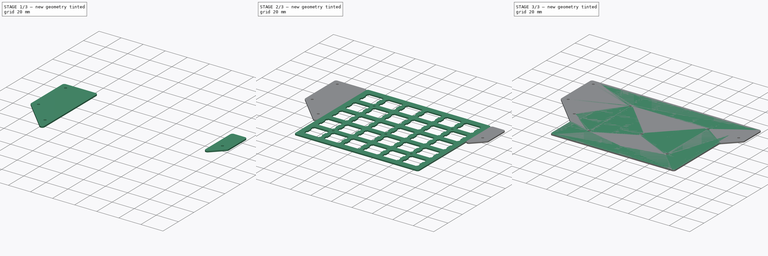
[diagram: build sequence overview — one tinted view per stage of 3, left to right]
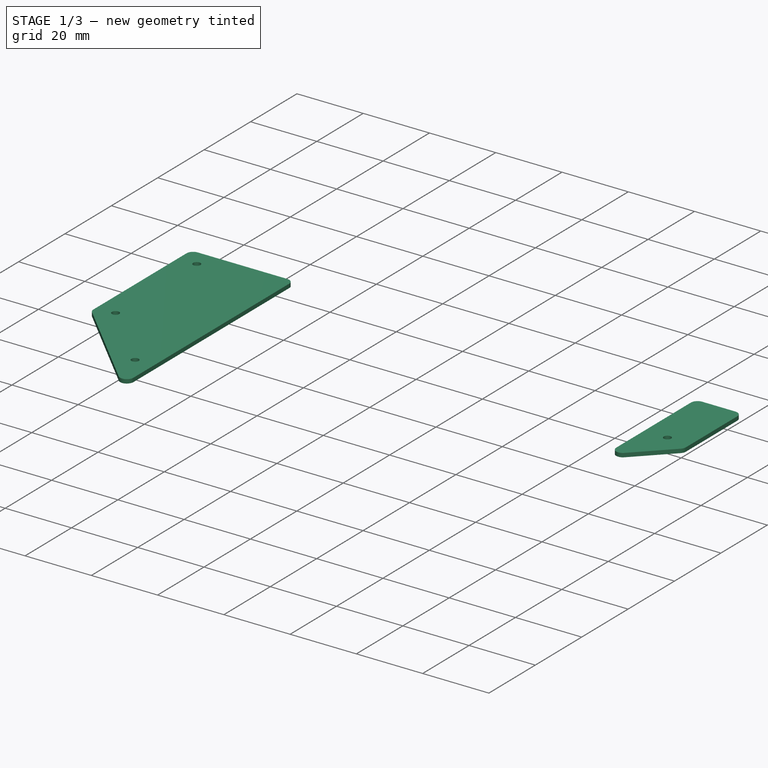
[diagram: stage 1 of 3 — iso view after this stage's code; geometry added in this stage tinted green]
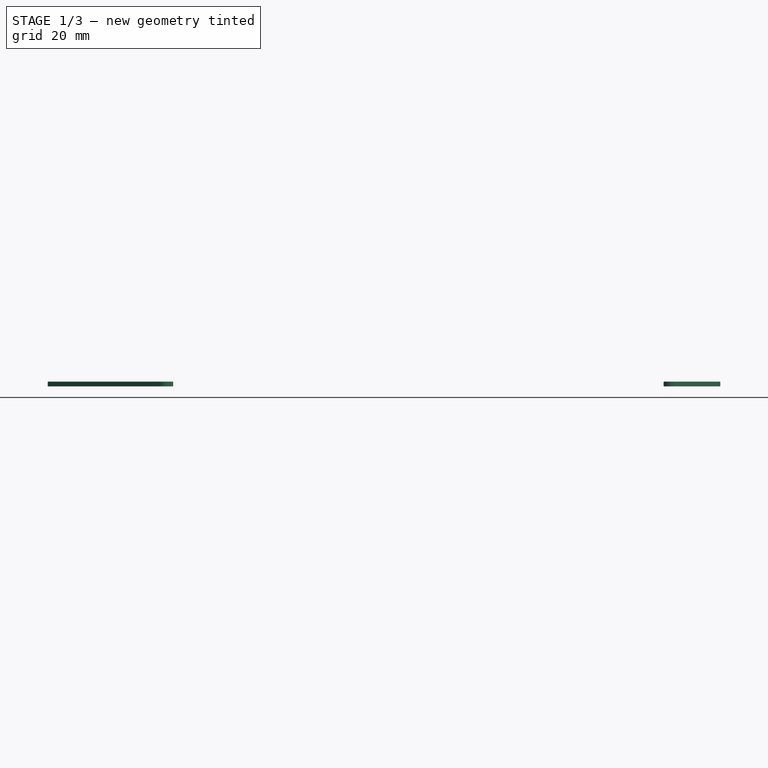
[diagram: stage 1 of 3 — front view after this stage's code; geometry added in this stage tinted green]
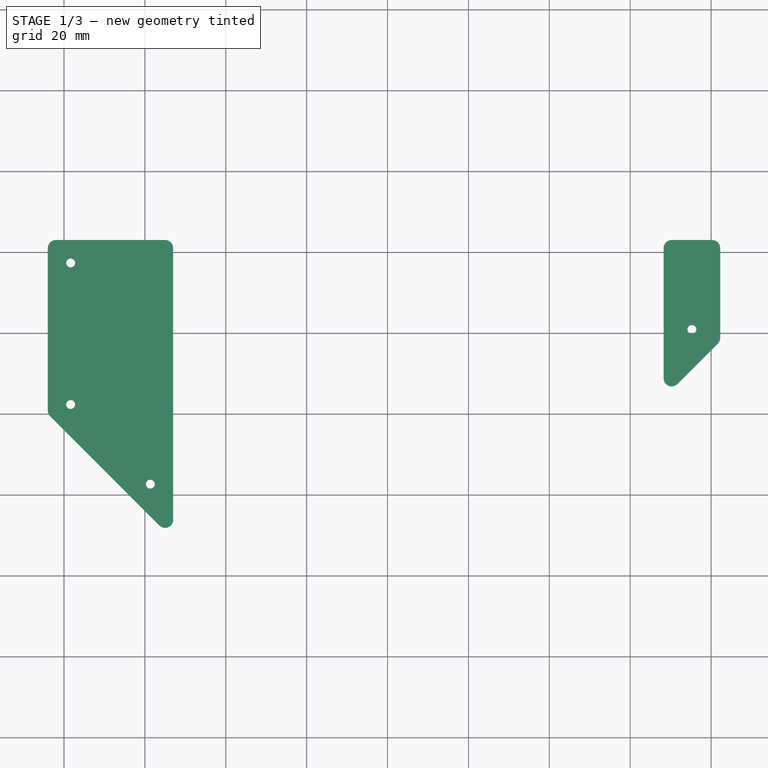
[diagram: stage 1 of 3 — top view after this stage's code; geometry added in this stage tinted green]
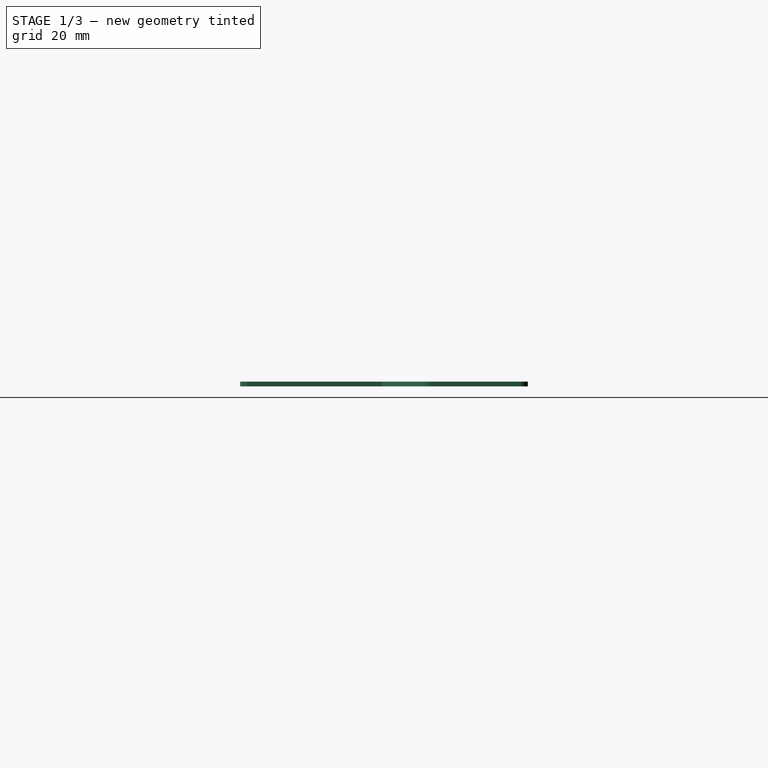
[diagram: stage 1 of 3 — right view after this stage's code; geometry added in this stage tinted green]
FCSTD DOCUMENT  (FreeCAD 0.18R16131 (Git))
Label: case
License: All rights reserved
LicenseURL: http://en.wikipedia.org/wiki/All_rights_reserved
objects: Sketcher::SketchObject×7, PartDesign::ShapeBinder×5, PartDesign::Pad×5, PartDesign::Body×5, PartDesign::LinearPattern×2, Spreadsheet::Sheet×1, PartDesign::Pocket×1, PartDesign::MultiTransform×1
note: 32 computed .brp shape members not serialized (recipe doc carries the construction recipe); baked Part::Feature solids carry a one-line shape summary decoded from their .brp

FEATURE [PartDesign::Body] Body002  label="plate"
  Group = -> [ShapeBinder002,Sketch003,Pad002,Sketch004,Pocket,MultiTransform,LinearPattern,LinearPattern001]
  Origin = -> Origin002
  Placement = pos=(0,0,6.2) rot=(0,0,1;0rad)
  Tip = -> MultiTransform
FEATURE [PartDesign::ShapeBinder] ShapeBinder003
  Support = -> [Sketch]
  TraceSupport = false
FEATURE [Sketcher::SketchObject] Sketch005
  ExternalGeometry = -> [ShapeBinder003]
  MapMode = 5
  Support = -> [XY_Plane003]
  expr: Constraints[15] = data.fillet
  sketch-geometry (11):
    g0: LineSegment StartX=56 StartY=-39 StartZ=0 EndX=56 EndY=-79.1716 EndZ=0
    g1: LineSegment StartX=56.5858 StartY=-80.5858 StartZ=0 EndX=83.5858 EndY=-107.586 EndZ=0
    g2: LineSegment StartX=87 StartY=-106.172 StartZ=0 EndX=87 EndY=-39 EndZ=0
    g3: LineSegment StartX=85 StartY=-37 StartZ=0 EndX=58 EndY=-37 EndZ=0
    g4: ArcOfCircle CenterX=58 CenterY=-39 CenterZ=0 NormalX=0 NormalY=0 NormalZ=1 AngleXU=0 Radius=2 StartAngle=1.5708 EndAngle=3.14159
    g5: ArcOfCircle CenterX=58 CenterY=-79.1716 CenterZ=0 NormalX=0 NormalY=0 NormalZ=1 AngleXU=0 Radius=2 StartAngle=3.14159 EndAngle=3.92699
    g6: ArcOfCircle CenterX=85 CenterY=-106.172 CenterZ=0 NormalX=0 NormalY=0 NormalZ=1 AngleXU=0 Radius=2 StartAngle=3.92699 EndAngle=6.28319
    g7: ArcOfCircle CenterX=85 CenterY=-39 CenterZ=0 NormalX=0 NormalY=0 NormalZ=1 AngleXU=0 Radius=2 StartAngle=1.6e-15 EndAngle=1.5708
    g8: Circle CenterX=61.65 CenterY=-42.65 CenterZ=0 NormalX=0 NormalY=0 NormalZ=1 AngleXU=0 Radius=1.1
    g9: Circle CenterX=61.65 CenterY=-77.6597 CenterZ=0 NormalX=0 NormalY=0 NormalZ=1 AngleXU=0 Radius=1.1
    g10: Circle CenterX=81.35 CenterY=-97.3597 CenterZ=0 NormalX=0 NormalY=0 NormalZ=1 AngleXU=0 Radius=1.1
  constraints (22):
    c: Tangent(g0,g4) = -1.5708
    c: Tangent(g3,g4) = -1.5708
    c: Tangent(g0,g5) = -1.5708
    c: Tangent(g1,g5) = -1.5708
    c: Tangent(g1,g6) = -1.5708
    c: Tangent(g2,g6) = -1.5708
    c: Tangent(g2,g7) = -1.5708
    c: Tangent(g3,g7) = -1.5708
    c: Equal(g6,g5)
    c: Equal(g5,g7)
    c: Equal(g7,g4)
    c: Tangent(g1,g-6)
    c: Tangent(g3,g-4)
    c: Tangent(g0,g-5)
    c: Tangent(g2,g-3)
    c: Radius(g4) = 2
    c: Coincident(g8,g-8)
    c: Coincident(g9,g-7)
    c: Coincident(g10,g-9)
    c: Equal(g9,g8)
    c: Equal(g8,g-8)
    c: Equal(g10,g9)
FEATURE [PartDesign::Pad] Pad003
  Length = 1.2
  Length2 = 100
  Profile = -> Sketch005
  Type = 0
FEATURE [PartDesign::Body] Body003  label="cover_uc"
  Group = -> [ShapeBinder003,Sketch005,Pad003]
  Origin = -> Origin003
  Placement = pos=(0,0,16.2) rot=(0,0,1;0rad)
  Tip = -> Pad003
FEATURE [PartDesign::ShapeBinder] ShapeBinder004
  Support = -> [Sketch]
  TraceSupport = false
FEATURE [Sketcher::SketchObject] Sketch006
  ExternalGeometry = -> [ShapeBinder004]
  MapMode = 5
  Support = -> [XY_Plane004]
  expr: Constraints[17] = data.fillet
  sketch-geometry (9):
    g0: Circle CenterX=215.25 CenterY=-59.1005 CenterZ=0 NormalX=0 NormalY=0 NormalZ=1 AngleXU=0 Radius=1.1
    g1: LineSegment StartX=222.25 StartY=-39 StartZ=0 EndX=222.25 EndY=-61.1716 EndZ=0
    g2: LineSegment StartX=221.664 StartY=-62.5858 StartZ=0 EndX=211.664 EndY=-72.5858 EndZ=0
    g3: LineSegment StartX=208.25 StartY=-71.1716 StartZ=0 EndX=208.25 EndY=-39 EndZ=0
    g4: LineSegment StartX=210.25 StartY=-37 StartZ=0 EndX=220.25 EndY=-37 EndZ=0
    g5: ArcOfCircle CenterX=210.25 CenterY=-39 CenterZ=0 NormalX=0 NormalY=0 NormalZ=1 AngleXU=0 Radius=2 StartAngle=1.5708 EndAngle=3.14159
    g6: ArcOfCircle CenterX=220.25 CenterY=-39 CenterZ=0 NormalX=0 NormalY=0 NormalZ=1 AngleXU=0 Radius=2 StartAngle=0 EndAngle=1.5708
    g7: ArcOfCircle CenterX=220.25 CenterY=-61.1716 CenterZ=0 NormalX=0 NormalY=0 NormalZ=1 AngleXU=0 Radius=2 StartAngle=5.49779 EndAngle=6.28319
    g8: ArcOfCircle CenterX=210.25 CenterY=-71.1716 CenterZ=0 NormalX=0 NormalY=0 NormalZ=1 AngleXU=0 Radius=2 StartAngle=3.14159 EndAngle=5.49779
  constraints (18):
    c: Coincident(g0,g-6)
    c: Equal(g0,g-6)
    c: Tangent(g4,g5) = 1.5708
    c: Tangent(g3,g5) = 1.5708
    c: Tangent(g4,g6) = 1.5708
    c: Tangent(g1,g6) = 1.5708
    c: Tangent(g2,g7) = 1.5708
    c: Tangent(g1,g7) = 1.5708
    c: Tangent(g2,g8) = 1.5708
    c: Tangent(g3,g8) = 1.5708
    c: Equal(g8,g7)
    c: Equal(g7,g6)
    c: Equal(g6,g5)
    c: Tangent(g4,g-4)
    c: Tangent(g1,g-3)
    c: Tangent(g2,g-5)
    c: Tangent(g-7,g3)
    c: Radius(g5) = 2
FEATURE [PartDesign::Pad] Pad004
  Length = 1.2
  Length2 = 100
  Profile = -> Sketch006
  Type = 0
FEATURE [PartDesign::Body] Body004  label="cover_jack"
  Group = -> [ShapeBinder004,Sketch006,Pad004]
  Origin = -> Origin004
  Placement = pos=(0,0,16.2) rot=(0,0,1;0rad)
  Tip = -> Pad004
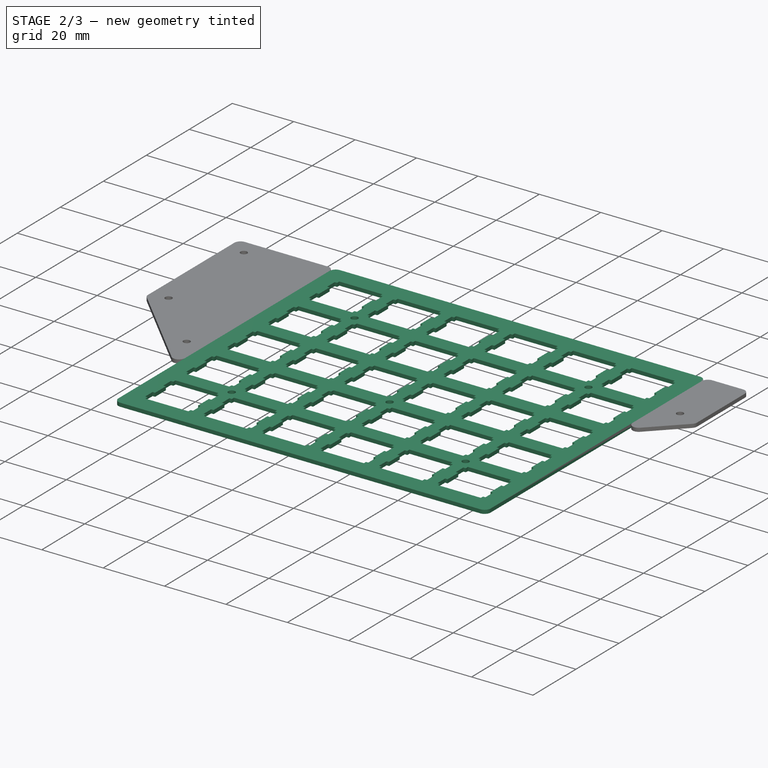
[diagram: stage 2 of 3 — iso view after this stage's code; geometry added in this stage tinted green]
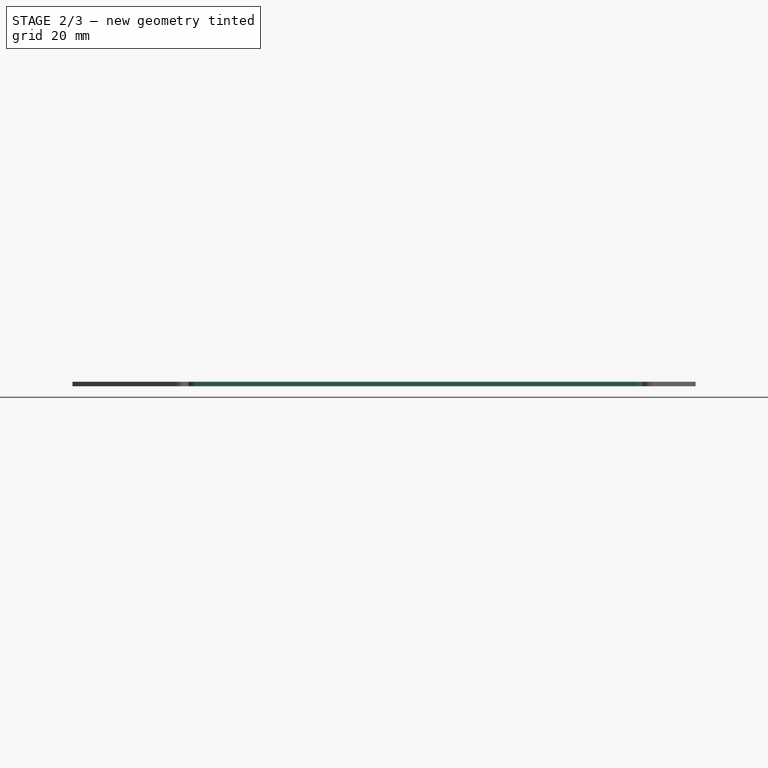
[diagram: stage 2 of 3 — front view after this stage's code; geometry added in this stage tinted green]
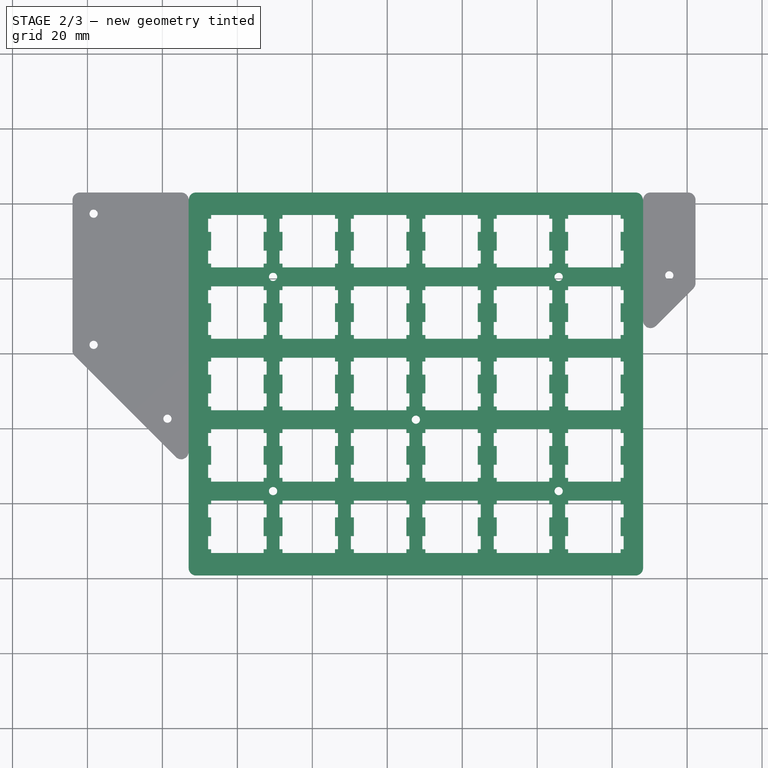
[diagram: stage 2 of 3 — top view after this stage's code; geometry added in this stage tinted green]
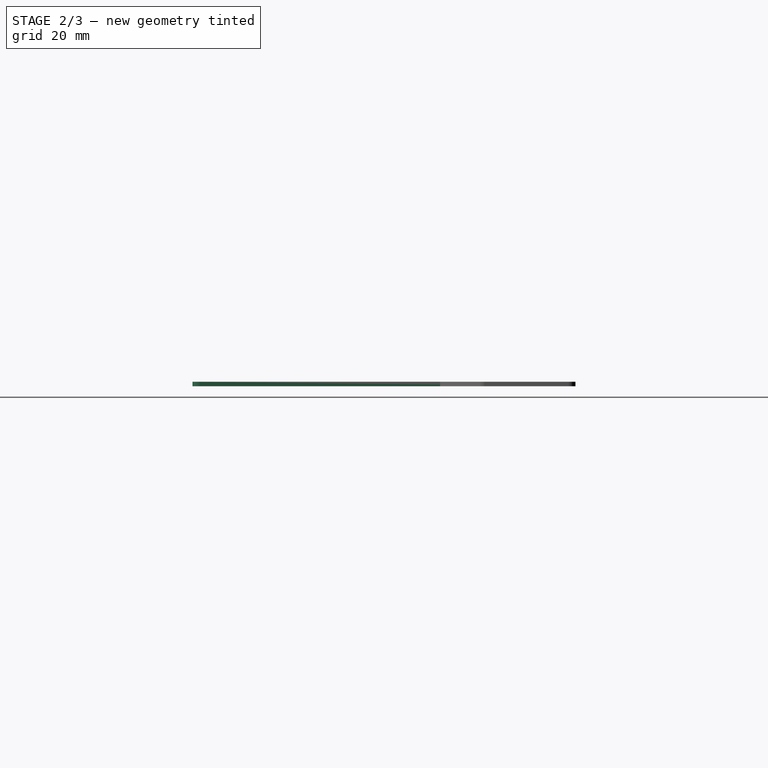
[diagram: stage 2 of 3 — right view after this stage's code; geometry added in this stage tinted green]
FEATURE [PartDesign::Body] Body001  label="pcb"
  Group = -> [ShapeBinder001,Sketch002,Pad001]
  Origin = -> Origin001
  Placement = pos=(0,0,2.4) rot=(0,0,1;0rad)
  Tip = -> Pad001
FEATURE [PartDesign::ShapeBinder] ShapeBinder002
  Support = -> [Sketch]
  TraceSupport = false
FEATURE [Sketcher::SketchObject] Sketch003
  ExternalGeometry = -> [ShapeBinder002]
  MapMode = 5
  Support = -> [XY_Plane002]
  expr: Constraints[11] = data.fillet
  sketch-geometry (13):
    g0: LineSegment StartX=89 StartY=-139.2 StartZ=0 EndX=206.25 EndY=-139.2 EndZ=0
    g1: LineSegment StartX=208.25 StartY=-137.2 StartZ=0 EndX=208.25 EndY=-39 EndZ=0
    g2: LineSegment StartX=206.25 StartY=-37 StartZ=0 EndX=89 EndY=-37 EndZ=0
    g3: LineSegment StartX=87 StartY=-39 StartZ=0 EndX=87 EndY=-137.2 EndZ=0
    g4: ArcOfCircle CenterX=89 CenterY=-39 CenterZ=0 NormalX=0 NormalY=0 NormalZ=1 AngleXU=0 Radius=2 StartAngle=1.5708 EndAngle=3.14159
    g5: ArcOfCircle CenterX=89 CenterY=-137.2 CenterZ=0 NormalX=0 NormalY=0 NormalZ=1 AngleXU=0 Radius=2 StartAngle=3.14159 EndAngle=4.71239
    g6: ArcOfCircle CenterX=206.25 CenterY=-137.2 CenterZ=0 NormalX=0 NormalY=0 NormalZ=1 AngleXU=0 Radius=2 StartAngle=4.71239 EndAngle=6.28319
    g7: ArcOfCircle CenterX=206.25 CenterY=-39 CenterZ=0 NormalX=0 NormalY=0 NormalZ=1 AngleXU=0 Radius=2 StartAngle=-9e-16 EndAngle=1.5708
    g8: Circle CenterX=109.525 CenterY=-59.525 CenterZ=0 NormalX=0 NormalY=0 NormalZ=1 AngleXU=0 Radius=1.1
    g9: Circle CenterX=109.525 CenterY=-116.675 CenterZ=0 NormalX=0 NormalY=0 NormalZ=1 AngleXU=0 Radius=1.1
    g10: Circle CenterX=185.725 CenterY=-116.675 CenterZ=0 NormalX=0 NormalY=0 NormalZ=1 AngleXU=0 Radius=1.1
    g11: Circle CenterX=147.625 CenterY=-97.625 CenterZ=0 NormalX=0 NormalY=0 NormalZ=1 AngleXU=0 Radius=1.1
    g12: Circle CenterX=185.725 CenterY=-59.525 CenterZ=0 NormalX=0 NormalY=0 NormalZ=1 AngleXU=0 Radius=1.1
  constraints (26):
    c: Tangent(g2,g4) = -1.5708
    c: Tangent(g3,g4) = -1.5708
    c: Tangent(g3,g5) = -1.5708
    c: Tangent(g0,g5) = -1.5708
    c: Tangent(g1,g6) = -1.5708
    c: Tangent(g0,g6) = -1.5708
    c: Tangent(g1,g7) = -1.5708
    c: Tangent(g2,g7) = -1.5708
    c: Equal(g4,g7)
    c: Equal(g7,g6)
    c: Equal(g6,g5)
    c: Radius(g4) = 2
    c: Tangent(g2,g-3)
    c: Tangent(g3,g-5)
    c: Tangent(g0,g-7)
    c: Tangent(g1,g-8)
    c: Coincident(g8,g-15)
    c: Coincident(g9,g-14)
    c: Coincident(g10,g-12)
    c: Coincident(g11,g-13)
    c: Coincident(g12,g-11)
    c: Equal(g12,g10)
    c: Equal(g10,g11)
    c: Equal(g11,g9)
    c: Equal(g9,g8)
    c: Equal(g8,g-15)
FEATURE [PartDesign::Pad] Pad002
  Length = 1.2
  Length2 = 100
  Profile = -> Sketch003
  Type = 0
FEATURE [Sketcher::SketchObject] Sketch004
  ExternalGeometry = -> [ShapeBinder002]
  MapMode = 5
  Placement = pos=(0,0,1.2) rot=(0,0,1;0rad)
  Support = -> [Pad002]
  sketch-geometry (20):
    g0: LineSegment StartX=93 StartY=-44 StartZ=0 EndX=93 EndY=-43 EndZ=0
    g1: LineSegment StartX=93 StartY=-43 StartZ=0 EndX=107 EndY=-43 EndZ=0
    g2: LineSegment StartX=107 StartY=-43 StartZ=0 EndX=107 EndY=-44 EndZ=0
    g3: LineSegment StartX=107.8 StartY=-44 StartZ=0 EndX=107 EndY=-44 EndZ=0
    g4: LineSegment StartX=107.8 StartY=-44 StartZ=0 EndX=107.8 EndY=-47.5 EndZ=0
    g5: LineSegment StartX=107.8 StartY=-47.5 StartZ=0 EndX=107 EndY=-47.5 EndZ=0
    g6: LineSegment StartX=107 StartY=-47.5 StartZ=0 EndX=107 EndY=-52.5 EndZ=0
    g7: LineSegment StartX=107 StartY=-52.5 StartZ=0 EndX=107.8 EndY=-52.5 EndZ=0
    g8: LineSegment StartX=107.8 StartY=-52.5 StartZ=0 EndX=107.8 EndY=-56 EndZ=0
    g9: LineSegment StartX=107.8 StartY=-56 StartZ=0 EndX=107 EndY=-56 EndZ=0
    g10: LineSegment StartX=107 StartY=-56 StartZ=0 EndX=107 EndY=-57 EndZ=0
    g11: LineSegment StartX=107 StartY=-57 StartZ=0 EndX=93 EndY=-57 EndZ=0
    g12: LineSegment StartX=93 StartY=-56 StartZ=0 EndX=93 EndY=-57 EndZ=0
    g13: LineSegment StartX=93 StartY=-56 StartZ=0 EndX=92.2 EndY=-56 EndZ=0
    g14: LineSegment StartX=92.2 StartY=-52.5 StartZ=0 EndX=92.2 EndY=-56 EndZ=0
    g15: LineSegment StartX=92.2 StartY=-52.5 StartZ=0 EndX=93 EndY=-52.5 EndZ=0
    g16: LineSegment StartX=93 StartY=-52.5 StartZ=0 EndX=93 EndY=-47.5 EndZ=0
    g17: LineSegment StartX=93 StartY=-47.5 StartZ=0 EndX=92.2 EndY=-47.5 EndZ=0
    g18: LineSegment StartX=92.2 StartY=-47.5 StartZ=0 EndX=92.2 EndY=-44 EndZ=0
    g19: LineSegment StartX=92.2 StartY=-44 StartZ=0 EndX=93 EndY=-44 EndZ=0
  constraints (44):
    c: Coincident(g0,g-22)
    c: Coincident(g0,g-22)
    c: Coincident(g1,g0)
    c: Coincident(g1,g-4)
    c: Coincident(g2,g-5)
    c: Vertical(g2)
    c: Coincident(g3,g-6)
    c: Coincident(g2,g3)
    c: Coincident(g1,g2)
    c: Coincident(g1,g-3)
    c: Coincident(g4,g3)
    c: Coincident(g4,g-7)
    c: Coincident(g5,g4)
    c: Coincident(g5,g-8)
    c: Coincident(g6,g5)
    c: Coincident(g6,g-10)
    c: Coincident(g7,g6)
    c: Horizontal(g7)
    c: Coincident(g8,g7)
    c: Coincident(g8,g-11)
    c: Vertical(g8)
    c: Coincident(g9,g8)
    c: Coincident(g9,g-12)
    c: Coincident(g10,g9)
    c: Coincident(g10,g-13)
    c: Coincident(g11,g-14)
    c: Coincident(g10,g11)
    c: Coincident(g12,g-15)
    c: Coincident(g12,g11)
    c: Coincident(g13,g12)
    c: Coincident(g13,g-16)
    c: Coincident(g14,g13)
    c: Vertical(g14)
    c: Coincident(g15,g14)
    c: Coincident(g15,g-18)
    c: Horizontal(g15)
    c: Coincident(g16,g15)
    c: Coincident(g-19,g16)
    c: Coincident(g17,g16)
    c: Coincident(g17,g-20)
    c: Coincident(g18,g17)
    c: Coincident(g18,g-21)
    c: Coincident(g19,g0)
    c: Coincident(g18,g19)
FEATURE [PartDesign::Pocket] Pocket
  BaseFeature = -> Pad002
  Length = 5
  Length2 = 100
  Profile = -> Sketch004
  Type = 1
FEATURE [PartDesign::LinearPattern] LinearPattern
  Direction = -> Sketch004 [H_Axis]
  Length = 95.25
  Occurrences = 6
  expr: Length = (data.keys_cols - 1) * data.keys_spacing
  expr: Occurrences = data.keys_cols
FEATURE [PartDesign::LinearPattern] LinearPattern001
  Direction = -> Sketch004 [V_Axis]
  Length = 76.2
  Occurrences = 5
  Reversed = true
  expr: Length = (data.keys_rows - 1) * data.keys_spacing
  expr: Occurrences = data.keys_rows
FEATURE [PartDesign::MultiTransform] MultiTransform
  BaseFeature = -> Pocket
  Originals = -> [Pocket]
  Transformations = -> [LinearPattern,LinearPattern001]
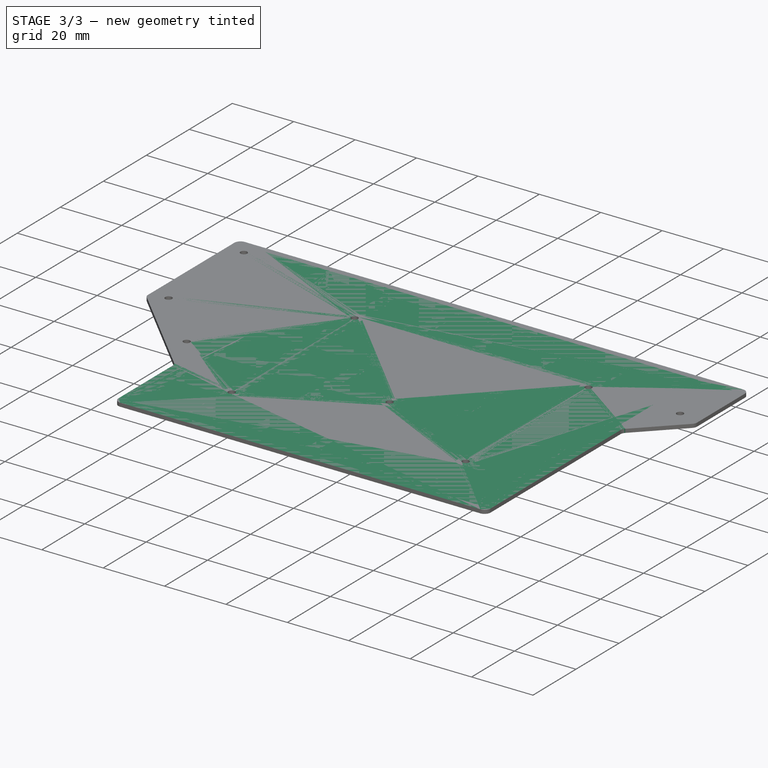
[diagram: stage 3 of 3 — iso view after this stage's code; geometry added in this stage tinted green]
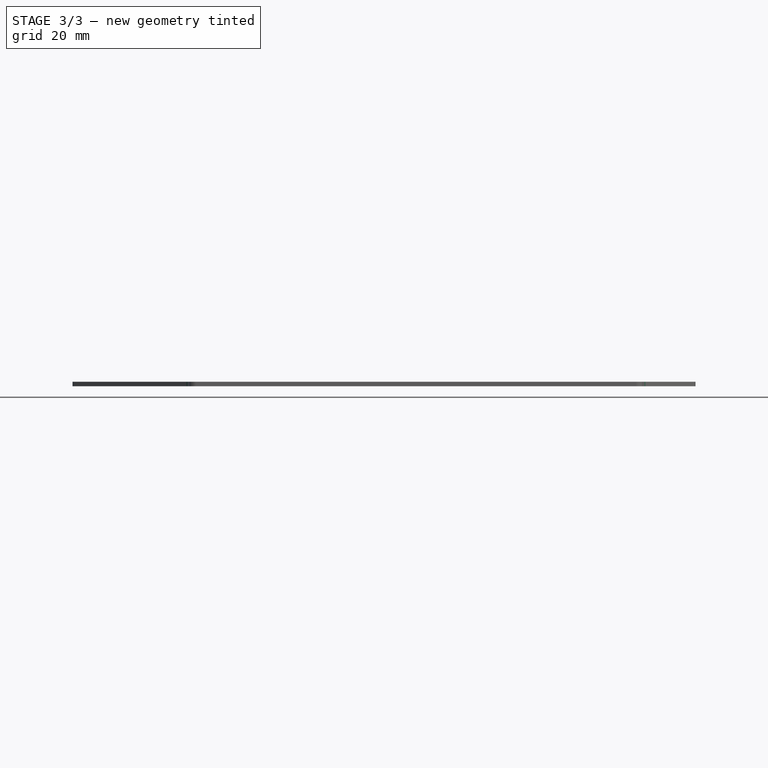
[diagram: stage 3 of 3 — front view after this stage's code; geometry added in this stage tinted green]
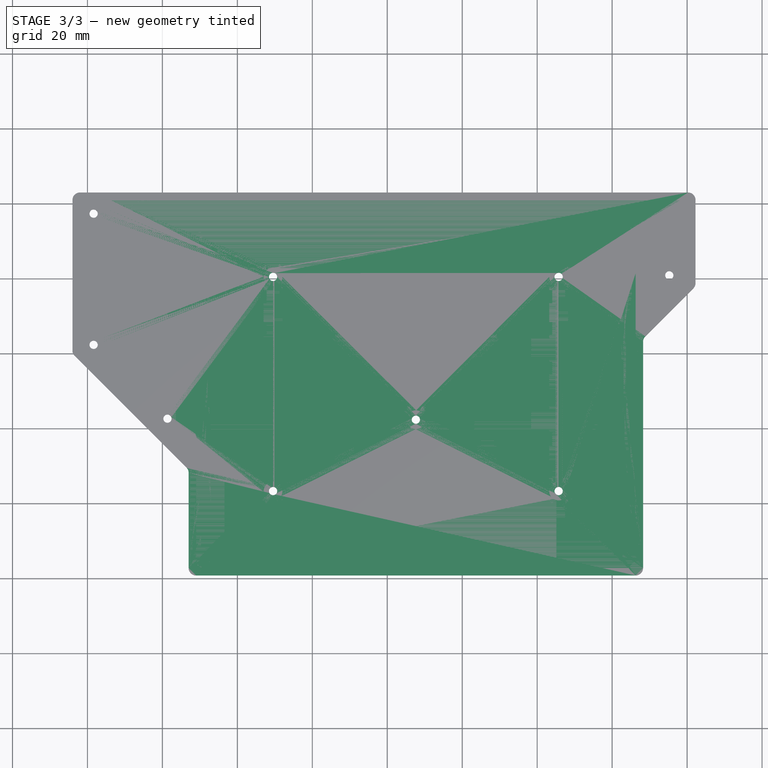
[diagram: stage 3 of 3 — top view after this stage's code; geometry added in this stage tinted green]
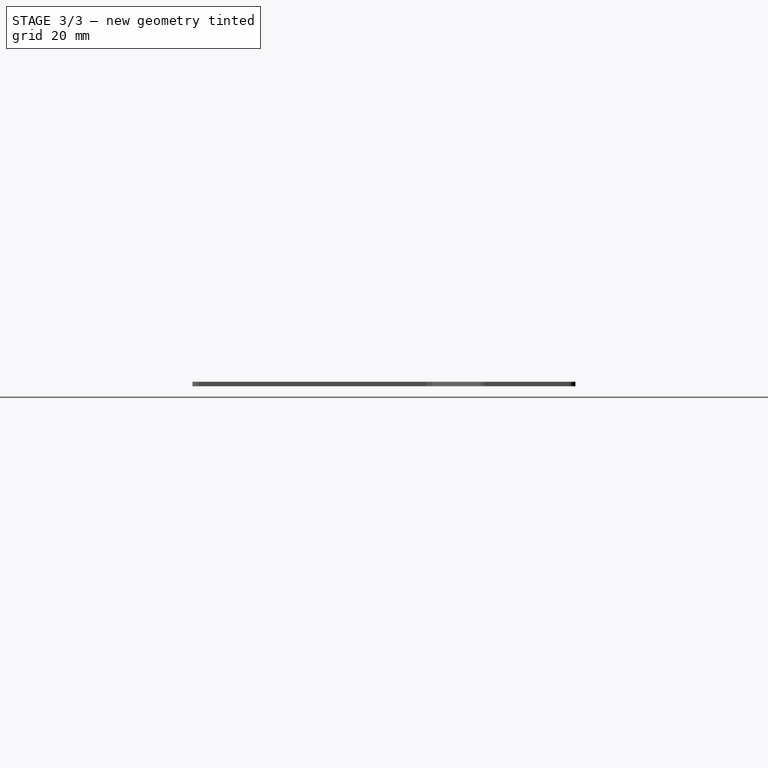
[diagram: stage 3 of 3 — right view after this stage's code; geometry added in this stage tinted green]
FEATURE [Sketcher::SketchObject] Sketch  label="MasterSketch"
  expr: Constraints[153] = data.keys_spacing * (data.keys_rows - 2)
  expr: Constraints[152] = data.keys_spacing * (data.keys_cols - 2)
  expr: Constraints[147] = data.keys_spacing / 2
  expr: Constraints[146] = data.keys_spacing / 2
  expr: Constraints[165] = data.keys_spacing * floor(data.keys_cols / 2 - 1)
  expr: Constraints[135] = data.hole_margin
  expr: Constraints[166] = data.keys_spacing * floor(data.keys_rows / 2)
  expr: Constraints[103] = (data.keys_rows - 1) * data.keys_spacing + data.key_margin
  expr: Constraints[112] = data.hole / 2
  expr: Constraints[101] = (data.keys_cols - 1) * data.keys_spacing + data.key_margin
  expr: Constraints[98] = data.key_margin
  expr: Constraints[97] = data.key_margin
  sketch-geometry (61):
    g0: LineSegment [constr] StartX=93 StartY=-43 StartZ=0 EndX=107 EndY=-43 EndZ=0
    g1: LineSegment [constr] StartX=107 StartY=-43 StartZ=0 EndX=107 EndY=-57 EndZ=0
    g2: LineSegment [constr] StartX=107 StartY=-57 StartZ=0 EndX=93 EndY=-57 EndZ=0
    g3: LineSegment [constr] StartX=93 StartY=-57 StartZ=0 EndX=93 EndY=-43 EndZ=0
    g4: LineSegment [constr] StartX=92.2 StartY=-44 StartZ=0 EndX=107.8 EndY=-44 EndZ=0
    g5: LineSegment [constr] StartX=107.8 StartY=-44 StartZ=0 EndX=107.8 EndY=-56 EndZ=0
    g6: LineSegment [constr] StartX=107.8 StartY=-56 StartZ=0 EndX=92.2 EndY=-56 EndZ=0
    g7: LineSegment [constr] StartX=92.2 StartY=-56 StartZ=0 EndX=92.2 EndY=-44 EndZ=0
    g8: GeomPoint X=100 Y=-50 Z=0
    g9: LineSegment [constr] StartX=92.2 StartY=-47.5 StartZ=0 EndX=107.8 EndY=-47.5 EndZ=0
    g10: LineSegment [constr] StartX=107.8 StartY=-47.5 StartZ=0 EndX=107.8 EndY=-52.5 EndZ=0
    g11: LineSegment [constr] StartX=107.8 StartY=-52.5 StartZ=0 EndX=92.2 EndY=-52.5 EndZ=0
    g12: LineSegment [constr] StartX=92.2 StartY=-52.5 StartZ=0 EndX=92.2 EndY=-47.5 EndZ=0
    g13: LineSegment StartX=93 StartY=-43 StartZ=0 EndX=107 EndY=-43 EndZ=0
    g14: LineSegment StartX=107 StartY=-43 StartZ=0 EndX=107 EndY=-44 EndZ=0
    g15: LineSegment StartX=107 StartY=-44 StartZ=0 EndX=107.8 EndY=-44 EndZ=0
    g16: LineSegment StartX=107.8 StartY=-44 StartZ=0 EndX=107.8 EndY=-47.5 EndZ=0
    g17: LineSegment StartX=107.8 StartY=-47.5 StartZ=0 EndX=107 EndY=-47.5 EndZ=0
    g18: LineSegment StartX=107 StartY=-47.5 StartZ=0 EndX=107 EndY=-52.5 EndZ=0
    g19: LineSegment StartX=107 StartY=-52.5 StartZ=0 EndX=107.8 EndY=-52.5 EndZ=0
    g20: LineSegment StartX=107.8 StartY=-52.5 StartZ=0 EndX=107.8 EndY=-56 EndZ=0
    g21: LineSegment StartX=107.8 StartY=-56 StartZ=0 EndX=107 EndY=-56 EndZ=0
    g22: LineSegment StartX=107 StartY=-56 StartZ=0 EndX=107 EndY=-57 EndZ=0
    g23: LineSegment StartX=107 StartY=-57 StartZ=0 EndX=93 EndY=-57 EndZ=0
    g24: LineSegment StartX=93 StartY=-57 StartZ=0 EndX=93 EndY=-56 EndZ=0
    g25: LineSegment StartX=93 StartY=-56 StartZ=0 EndX=92.2 EndY=-56 EndZ=0
    g26: LineSegment StartX=92.2 StartY=-56 StartZ=0 EndX=92.2 EndY=-52.5 EndZ=0
    g27: LineSegment StartX=92.2 StartY=-52.5 StartZ=0 EndX=93 EndY=-52.5 EndZ=0
    g28: LineSegment StartX=93 StartY=-52.5 StartZ=0 EndX=93 EndY=-47.5 EndZ=0
    g29: LineSegment StartX=93 StartY=-47.5 StartZ=0 EndX=92.2 EndY=-47.5 EndZ=0
    g30: LineSegment StartX=92.2 StartY=-47.5 StartZ=0 EndX=92.2 EndY=-44 EndZ=0
    g31: LineSegment StartX=92.2 StartY=-44 StartZ=0 EndX=93 EndY=-44 EndZ=0
    g32: LineSegment StartX=93 StartY=-44 StartZ=0 EndX=93 EndY=-43 EndZ=0
    g33: LineSegment StartX=56 StartY=-37 StartZ=0 EndX=222.25 EndY=-37 EndZ=0
    g34: LineSegment StartX=222.25 StartY=-37 StartZ=0 EndX=222.25 EndY=-62 EndZ=0
    g35: LineSegment StartX=222.25 StartY=-62 StartZ=0 EndX=208.25 EndY=-76 EndZ=0
    g36: LineSegment StartX=208.25 StartY=-76 StartZ=0 EndX=208.25 EndY=-139.2 EndZ=0
    g37: LineSegment StartX=56 StartY=-37 StartZ=0 EndX=56 EndY=-80 EndZ=0
    g38: LineSegment StartX=56 StartY=-80 StartZ=0 EndX=87 EndY=-111 EndZ=0
    g39: LineSegment StartX=87 StartY=-111 StartZ=0 EndX=87 EndY=-139.2 EndZ=0
    g40: LineSegment StartX=87 StartY=-139.2 StartZ=0 EndX=208.25 EndY=-139.2 EndZ=0
    g41: LineSegment [constr] StartX=87 StartY=-111 StartZ=0 EndX=87 EndY=-37 EndZ=0
    g42: LineSegment [constr] StartX=208.25 StartY=-76 StartZ=0 EndX=208.25 EndY=-37 EndZ=0
    g43: Circle CenterX=61.65 CenterY=-42.65 CenterZ=0 NormalX=0 NormalY=0 NormalZ=1 AngleXU=0 Radius=1.1
    g44: Circle CenterX=61.65 CenterY=-77.6597 CenterZ=0 NormalX=0 NormalY=0 NormalZ=1 AngleXU=0 Radius=1.1
    g45: Circle CenterX=81.35 CenterY=-97.3597 CenterZ=0 NormalX=0 NormalY=0 NormalZ=1 AngleXU=0 Radius=1.1
    g46: Circle CenterX=109.525 CenterY=-116.675 CenterZ=0 NormalX=0 NormalY=0 NormalZ=1 AngleXU=0 Radius=1.1
    g47: Circle CenterX=147.625 CenterY=-97.625 CenterZ=0 NormalX=0 NormalY=0 NormalZ=1 AngleXU=0 Radius=1.1
    g48: Circle CenterX=109.525 CenterY=-59.525 CenterZ=0 NormalX=0 NormalY=0 NormalZ=1 AngleXU=0 Radius=1.1
    g49: Circle CenterX=185.725 CenterY=-59.525 CenterZ=0 NormalX=0 NormalY=0 NormalZ=1 AngleXU=0 Radius=1.1
    g50: Circle CenterX=185.725 CenterY=-116.675 CenterZ=0 NormalX=0 NormalY=0 NormalZ=1 AngleXU=0 Radius=1.1
    g51: Circle CenterX=215.25 CenterY=-59.1005 CenterZ=0 NormalX=0 NormalY=0 NormalZ=1 AngleXU=0 Radius=1.1
    g52: LineSegment [constr] StartX=61.65 StartY=-77.6597 StartZ=0 EndX=56 EndY=-77.6597 EndZ=0
    g53: LineSegment [constr] StartX=61.65 StartY=-77.6597 StartZ=0 EndX=57.6548 EndY=-81.6548 EndZ=0
    g54: LineSegment [constr] StartX=61.65 StartY=-42.65 StartZ=0 EndX=61.65 EndY=-37 EndZ=0
    g55: LineSegment [constr] StartX=61.65 StartY=-42.65 StartZ=0 EndX=56 EndY=-42.65 EndZ=0
    g56: LineSegment [constr] StartX=81.35 StartY=-97.3597 StartZ=0 EndX=77.3548 EndY=-101.355 EndZ=0
    g57: LineSegment [constr] StartX=81.35 StartY=-97.3597 StartZ=0 EndX=87 EndY=-97.3597 EndZ=0
    g58: LineSegment [constr] StartX=215.25 StartY=-59.1005 StartZ=0 EndX=208.25 EndY=-59.1005 EndZ=0
    g59: LineSegment [constr] StartX=215.25 StartY=-59.1005 StartZ=0 EndX=222.25 EndY=-59.1005 EndZ=0
    g60: LineSegment [constr] StartX=215.25 StartY=-59.1005 StartZ=0 EndX=220.2 EndY=-64.0503 EndZ=0
  constraints (167):
    c: Coincident(g0,g1)
    c: Coincident(g1,g2)
    c: Coincident(g2,g3)
    c: Coincident(g3,g0)
    c: Horizontal(g0)
    c: Horizontal(g2)
    c: Vertical(g1)
    c: Vertical(g3)
    c: DistanceX(g0,g0) = 14
    c: DistanceY(g1,g1) = 14
    c: Coincident(g4,g5)
    c: Coincident(g5,g6)
    c: Coincident(g6,g7)
    c: Coincident(g7,g4)
    c: Horizontal(g4)
    c: Horizontal(g6)
    c: Vertical(g5)
    c: Vertical(g7)
    c: Symmetric(g0,g2,g8)
    c: DistanceY(g5,g5) = 12
    c: DistanceX(g4,g4) = 15.6
    c: Symmetric(g6,g4,g8)
    c: Coincident(g9,g10)
    c: Coincident(g10,g11)
    c: Coincident(g11,g12)
    c: Coincident(g12,g9)
    c: Horizontal(g9)
    c: Horizontal(g11)
    c: Vertical(g10)
    c: Vertical(g12)
    c: PointOnObject(g9,g7)
    c: Symmetric(g11,g9,g8)
    c: DistanceX(g-1,g8) = 100
    c: DistanceY(g-1,g8) = -50
    c: Coincident(g13,g0)
    c: Coincident(g13,g0)
    c: Coincident(g14,g13)
    c: PointOnObject(g14,g1)
    c: Coincident(g15,g14)
    c: Coincident(g15,g4)
    c: Horizontal(g15)
    c: Coincident(g16,g15)
    c: Coincident(g16,g9)
    c: Coincident(g17,g16)
    c: PointOnObject(g17,g9)
    c: Coincident(g18,g17)
    c: PointOnObject(g18,g1)
    c: Vertical(g18)
    c: Coincident(g19,g18)
    c: Coincident(g20,g19)
    c: Coincident(g20,g5)
    c: Vertical(g20)
    c: Coincident(g21,g20)
    c: PointOnObject(g21,g6)
    c: Coincident(g22,g21)
    c: Coincident(g22,g1)
    c: Vertical(g22)
    c: Coincident(g23,g22)
    c: Coincident(g23,g2)
    c: Coincident(g24,g23)
    c: PointOnObject(g24,g3)
    c: Coincident(g25,g24)
    c: Coincident(g25,g6)
    c: Horizontal(g25)
    c: Coincident(g26,g25)
    c: Coincident(g26,g11)
    c: Coincident(g27,g26)
    c: Horizontal(g27)
    c: Coincident(g28,g27)
    c: PointOnObject(g28,g3)
    c: Vertical(g28)
    c: Coincident(g29,g28)
    c: Coincident(g29,g9)
    c: Horizontal(g29)
    c: Coincident(g30,g29)
    c: Coincident(g30,g4)
    c: Coincident(g31,g30)
    c: PointOnObject(g31,g4)
    c: Coincident(g32,g31)
    c: Coincident(g32,g13)
    c: Vertical(g32)
    c: DistanceY(g10,g10) = 5
    c: Tangent(g19,g11)
    c: Horizontal(g33)
    c: Coincident(g34,g33)
    c: Vertical(g34)
    c: Coincident(g35,g34)
    c: Coincident(g36,g35)
    c: Vertical(g36)
    c: Coincident(g37,g33)
    c: Vertical(g37)
    c: Coincident(g38,g37)
    c: Coincident(g39,g38)
    c: Vertical(g39)
    c: Coincident(g40,g39)
    c: Coincident(g40,g36)
    c: Horizontal(g40)
    c: DistanceX(g38,g8) = 13
    c: DistanceY(g8,g33) = 13
    c: Angle(g38) = -0.785398
    c: Angle(g35) = -2.35619
    c: DistanceX(g8,g35) = 108.25
    c: DistanceX(g35,g34) = 14
    c: DistanceY(g39,g8) = 89.2
    c: DistanceY(g37,g33) = 43
    c: DistanceY(g34,g34) = 25
    c: Coincident(g41,g38)
    c: PointOnObject(g41,g33)
    c: Vertical(g41)
    c: Coincident(g42,g35)
    c: PointOnObject(g42,g33)
    c: Vertical(g42)
    c: Radius(g43) = 1.1
    c: DistanceX(g37,g38) = 31
    c: Equal(g51,g49)
    c: Equal(g49,g50)
    c: Equal(g50,g47)
    c: Equal(g47,g46)
    c: Equal(g46,g45)
    c: Equal(g45,g44)
    c: Equal(g44,g48)
    c: Equal(g48,g43)
    c: Coincident(g52,g44)
    c: PointOnObject(g52,g37)
    c: Horizontal(g52)
    c: PointOnObject(g53,g38)
    c: Perpendicular(g38,g53)
    c: Coincident(g53,g44)
    c: Coincident(g54,g43)
    c: PointOnObject(g54,g33)
    c: Vertical(g54)
    c: Coincident(g55,g43)
    c: PointOnObject(g55,g37)
    c: Horizontal(g55)
    c: Equal(g55,g54)
    c: DistanceY(g54,g54) = 5.65
    c: Equal(g53,g52)
    c: Equal(g52,g54)
    c: Coincident(g56,g45)
    c: PointOnObject(g56,g38)
    c: Coincident(g57,g45)
    c: PointOnObject(g57,g41)
    c: Horizontal(g57)
    c: Perpendicular(g38,g56)
    c: Equal(g57,g56)
    c: Equal(g56,g54)
    c: DistanceX(g8,g48) = 9.525
    c: DistanceY(g48,g8) = 9.525
    c: Vertical(g46,g48)
    c: Horizontal(g49,g48)
    c: Vertical(g50,g49)
    c: Horizontal(g50,g46)
    c: DistanceX(g48,g49) = 76.2
    c: DistanceY(g46,g48) = 57.15
    c: Coincident(g58,g51)
    c: PointOnObject(g58,g42)
    c: Coincident(g59,g51)
    c: PointOnObject(g59,g34)
    c: Horizontal(g59)
    c: Horizontal(g58)
    c: Equal(g59,g58)
    c: Coincident(g60,g51)
    c: PointOnObject(g60,g35)
    c: Perpendicular(g35,g60)
    c: Equal(g60,g59)
    c: DistanceX(g48,g47) = 38.1
    c: DistanceY(g47,g48) = 38.1
FEATURE [Spreadsheet::Sheet] Spreadsheet  label="data"
  cells = A1=keys_cols; B1(keys_cols)=6; A2=keys_rows; B2(keys_rows)=5; A3=keys_spacing; B3(keys_spacing)=19.05; A4=key_margin; B4(key_margin)=13; A5=fillet; B5(fillet)=2; A6=hole; B6(hole)=2.2; A7=hole_big; B7(hole_big)=5; A8=pcb_to_case; B8(pcb_to_case)=2; A9=hole_margin; B9(hole_margin)==3.65 + 2
FEATURE [PartDesign::ShapeBinder] ShapeBinder
  Support = -> [Sketch]
  TraceSupport = false
FEATURE [Sketcher::SketchObject] Sketch001
  ExternalGeometry = -> [ShapeBinder]
  MapMode = 5
  Support = -> [XY_Plane]
  expr: Constraints[49] = data.fillet
  sketch-geometry (25):
    g0: LineSegment StartX=58 StartY=-37 StartZ=0 EndX=220.25 EndY=-37 EndZ=0
    g1: LineSegment StartX=222.25 StartY=-39 StartZ=0 EndX=222.25 EndY=-61.1716 EndZ=0
    g2: LineSegment StartX=221.664 StartY=-62.5858 StartZ=0 EndX=208.836 EndY=-75.4142 EndZ=0
    g3: LineSegment StartX=208.25 StartY=-76.8284 StartZ=0 EndX=208.25 EndY=-137.2 EndZ=0
    g4: LineSegment StartX=206.25 StartY=-139.2 StartZ=0 EndX=89 EndY=-139.2 EndZ=0
    g5: LineSegment StartX=87 StartY=-137.2 StartZ=0 EndX=87 EndY=-111.828 EndZ=0
    g6: LineSegment StartX=86.4142 StartY=-110.414 StartZ=0 EndX=56.5858 EndY=-80.5858 EndZ=0
    g7: LineSegment StartX=56 StartY=-79.1716 StartZ=0 EndX=56 EndY=-39 EndZ=0
    g8: ArcOfCircle CenterX=220.25 CenterY=-39 CenterZ=0 NormalX=0 NormalY=0 NormalZ=1 AngleXU=0 Radius=2 StartAngle=1e-16 EndAngle=1.5708
    g9: ArcOfCircle CenterX=220.25 CenterY=-61.1716 CenterZ=0 NormalX=0 NormalY=0 NormalZ=1 AngleXU=0 Radius=2 StartAngle=5.49779 EndAngle=6.28319
    g10: ArcOfCircle CenterX=210.25 CenterY=-76.8284 CenterZ=0 NormalX=0 NormalY=0 NormalZ=1 AngleXU=0 Radius=2 StartAngle=2.35619 EndAngle=3.14159
    g11: ArcOfCircle CenterX=206.25 CenterY=-137.2 CenterZ=0 NormalX=0 NormalY=0 NormalZ=1 AngleXU=0 Radius=2 StartAngle=4.71239 EndAngle=6.28319
    g12: ArcOfCircle CenterX=89 CenterY=-137.2 CenterZ=0 NormalX=0 NormalY=0 NormalZ=1 AngleXU=0 Radius=2 StartAngle=3.14159 EndAngle=4.71239
    g13: ArcOfCircle CenterX=85 CenterY=-111.828 CenterZ=0 NormalX=0 NormalY=0 NormalZ=1 AngleXU=0 Radius=2 StartAngle=2.6e-15 EndAngle=0.785398
    g14: ArcOfCircle CenterX=58 CenterY=-79.1716 CenterZ=0 NormalX=0 NormalY=0 NormalZ=1 AngleXU=0 Radius=2 StartAngle=3.14159 EndAngle=3.92699
    g15: ArcOfCircle CenterX=58 CenterY=-39 CenterZ=0 NormalX=0 NormalY=0 NormalZ=1 AngleXU=0 Radius=2 StartAngle=1.5708 EndAngle=3.14159
    g16: Circle CenterX=81.35 CenterY=-97.3597 CenterZ=0 NormalX=0 NormalY=0 NormalZ=1 AngleXU=0 Radius=1.1
    g17: Circle CenterX=109.525 CenterY=-59.525 CenterZ=0 NormalX=0 NormalY=0 NormalZ=1 AngleXU=0 Radius=1.1
    g18: Circle CenterX=147.625 CenterY=-97.625 CenterZ=0 NormalX=0 NormalY=0 NormalZ=1 AngleXU=0 Radius=1.1
    g19: Circle CenterX=185.725 CenterY=-59.525 CenterZ=0 NormalX=0 NormalY=0 NormalZ=1 AngleXU=0 Radius=1.1
    g20: Circle CenterX=215.25 CenterY=-59.1005 CenterZ=0 NormalX=0 NormalY=0 NormalZ=1 AngleXU=0 Radius=1.1
    g21: Circle CenterX=185.725 CenterY=-116.675 CenterZ=0 NormalX=0 NormalY=0 NormalZ=1 AngleXU=0 Radius=1.1
    g22: Circle CenterX=109.525 CenterY=-116.675 CenterZ=0 NormalX=0 NormalY=0 NormalZ=1 AngleXU=0 Radius=1.1
    g23: Circle CenterX=61.65 CenterY=-77.6597 CenterZ=0 NormalX=0 NormalY=0 NormalZ=1 AngleXU=0 Radius=1.1
    g24: Circle CenterX=61.65 CenterY=-42.65 CenterZ=0 NormalX=0 NormalY=0 NormalZ=1 AngleXU=0 Radius=1.1
  constraints (50):
    c: Tangent(g0,g8) = 1.5708
    c: Tangent(g1,g8) = 1.5708
    c: Tangent(g1,g9) = 1.5708
    c: Tangent(g2,g9) = 1.5708
    c: Tangent(g2,g10) = -1.5708
    c: Tangent(g3,g10) = -1.5708
    c: Tangent(g3,g11) = 1.5708
    c: Tangent(g4,g11) = 1.5708
    c: Tangent(g5,g12) = 1.5708
    c: Tangent(g4,g12) = 1.5708
    c: Tangent(g6,g13) = -1.5708
    c: Tangent(g5,g13) = -1.5708
    c: Tangent(g7,g14) = 1.5708
    c: Tangent(g6,g14) = 1.5708
    c: Tangent(g0,g15) = 1.5708
    c: Tangent(g7,g15) = 1.5708
    c: Equal(g15,g14)
    c: Equal(g14,g13)
    c: Equal(g13,g12)
    c: Equal(g12,g11)
    c: Equal(g11,g10)
    c: Equal(g10,g9)
    c: Equal(g9,g8)
    c: Tangent(g0,g-3)
    c: Tangent(g1,g-10)
    c: Tangent(g-8,g3)
    c: Tangent(g4,g-7)
    c: Tangent(g-6,g5)
    c: Tangent(g6,g-5)
    c: Tangent(g7,g-4)
    c: Equal(g16,g18)
    c: Equal(g18,g19)
    c: Equal(g19,g21)
    c: Equal(g21,g22)
    c: Equal(g22,g20)
    c: Coincident(g16,g-13)
    c: Coincident(g17,g-19)
    c: Coincident(g18,g-15)
    c: Coincident(g22,g-14)
    c: Coincident(g21,g-18)
    c: Coincident(g19,g-16)
    c: Coincident(g20,g-17)
    c: Tangent(g2,g-9)
    c: Equal(g17,g16)
    c: Coincident(g23,g-12)
    c: Coincident(g24,g-11)
    c: Equal(g23,g17)
    c: Equal(g17,g24)
    c: Equal(g-11,g24)
    c: Radius(g15) = 2
FEATURE [PartDesign::Pad] Pad
  Length = 1.2
  Length2 = 100
  Profile = -> Sketch001
  Type = 0
FEATURE [PartDesign::Body] Body  label="bottom"
  Group = -> [ShapeBinder,Sketch001,Pad]
  Origin = -> Origin
  Tip = -> Pad
FEATURE [PartDesign::ShapeBinder] ShapeBinder001
  Support = -> [Sketch]
  TraceSupport = false
FEATURE [Sketcher::SketchObject] Sketch002
  ExternalGeometry = -> [ShapeBinder001]
  MapMode = 5
  Support = -> [XY_Plane001]
  expr: Constraints[48] = data.pcb_to_case
  expr: Constraints[40] = data.hole_big / 2
  expr: Constraints[12] = data.pcb_to_case
  expr: Constraints[49] = data.fillet
  expr: Constraints[15] = data.pcb_to_case
  expr: Constraints[33] = data.hole_big / 2
  expr: Constraints[11] = data.pcb_to_case
  expr: Constraints[10] = data.pcb_to_case
  expr: Constraints[51] = data.hole_big / 2
  expr: Constraints[25] = data.hole_big
  sketch-geometry (22):
    g0: LineSegment StartX=66.15 StartY=-39 StartZ=0 EndX=218.25 EndY=-39 EndZ=0
    g1: LineSegment StartX=220.25 StartY=-41 StartZ=0 EndX=220.25 EndY=-54.6005 EndZ=0
    g2: LineSegment StartX=206.25 StartY=-58.6005 StartZ=0 EndX=206.25 EndY=-135.2 EndZ=0
    g3: LineSegment StartX=204.25 StartY=-137.2 StartZ=0 EndX=91 EndY=-137.2 EndZ=0
    g4: LineSegment StartX=89 StartY=-135.2 StartZ=0 EndX=89 EndY=-102.303 EndZ=0
    g5: LineSegment StartX=88.4142 StartY=-100.888 StartZ=0 EndX=64.7358 EndY=-77.2099 EndZ=0
    g6: ArcOfCircle CenterX=91 CenterY=-135.2 CenterZ=0 NormalX=0 NormalY=0 NormalZ=1 AngleXU=0 Radius=2 StartAngle=3.14159 EndAngle=4.71239
    g7: ArcOfCircle CenterX=204.25 CenterY=-135.2 CenterZ=0 NormalX=0 NormalY=0 NormalZ=1 AngleXU=0 Radius=2 StartAngle=4.71239 EndAngle=6.28319
    g8: ArcOfCircle CenterX=218.25 CenterY=-41 CenterZ=0 NormalX=0 NormalY=0 NormalZ=1 AngleXU=0 Radius=2 StartAngle=-1.8e-15 EndAngle=1.5708
    g9: Circle CenterX=109.525 CenterY=-59.525 CenterZ=0 NormalX=0 NormalY=0 NormalZ=1 AngleXU=0 Radius=2.5
    g10: Circle CenterX=147.625 CenterY=-97.625 CenterZ=0 NormalX=0 NormalY=0 NormalZ=1 AngleXU=0 Radius=2.5
    g11: Circle CenterX=109.525 CenterY=-116.675 CenterZ=0 NormalX=0 NormalY=0 NormalZ=1 AngleXU=0 Radius=2.5
    g12: Circle CenterX=185.725 CenterY=-116.675 CenterZ=0 NormalX=0 NormalY=0 NormalZ=1 AngleXU=0 Radius=2.5
    g13: Circle CenterX=185.725 CenterY=-59.525 CenterZ=0 NormalX=0 NormalY=0 NormalZ=1 AngleXU=0 Radius=2.5
    g14: LineSegment StartX=64.15 StartY=-75.7957 StartZ=0 EndX=64.15 EndY=-41 EndZ=0
    g15: ArcOfCircle CenterX=66.15 CenterY=-75.7957 CenterZ=0 NormalX=0 NormalY=0 NormalZ=1 AngleXU=0 Radius=2 StartAngle=3.14159 EndAngle=3.92699
    g16: ArcOfCircle CenterX=66.15 CenterY=-41 CenterZ=0 NormalX=0 NormalY=0 NormalZ=1 AngleXU=0 Radius=2 StartAngle=1.5708 EndAngle=3.14159
    g17: ArcOfCircle CenterX=87 CenterY=-102.303 CenterZ=0 NormalX=0 NormalY=0 NormalZ=1 AngleXU=0 Radius=2 StartAngle=-9e-16 EndAngle=0.785398
    g18: LineSegment [constr] StartX=81.35 StartY=-97.3597 StartZ=0 EndX=83.1178 EndY=-95.5919 EndZ=0
    g19: LineSegment StartX=208.25 StartY=-56.6005 StartZ=0 EndX=218.25 EndY=-56.6005 EndZ=0
    g20: ArcOfCircle CenterX=208.25 CenterY=-58.6005 CenterZ=0 NormalX=0 NormalY=0 NormalZ=1 AngleXU=0 Radius=2 StartAngle=1.5708 EndAngle=3.14159
    g21: ArcOfCircle CenterX=218.25 CenterY=-54.6005 CenterZ=0 NormalX=0 NormalY=0 NormalZ=1 AngleXU=0 Radius=2 StartAngle=4.71239 EndAngle=6.28319
  constraints (53):
    c: Horizontal(g0)
    c: Vertical(g1)
    c: Vertical(g2)
    c: Horizontal(g3)
    c: Vertical(g4)
    c: Parallel(g5,g-4)
    c: Tangent(g4,g6) = 1.5708
    c: Tangent(g3,g6) = 1.5708
    c: Tangent(g2,g7) = 1.5708
    c: Tangent(g3,g7) = 1.5708
    c: DistanceX(g-6,g4) = 2
    c: DistanceX(g2,g-7) = 2
    c: DistanceY(g-7,g3) = 2
    c: Tangent(g0,g8) = 1.5708
    c: Tangent(g1,g8) = 1.5708
    c: DistanceX(g1,g-8) = 2
    c: Equal(g7,g6)
    c: Coincident(g10,g-14)
    c: Coincident(g11,g-12)
    c: Coincident(g13,g-15)
    c: Coincident(g12,g-16)
    c: Equal(g12,g11)
    c: Equal(g11,g10)
    c: Equal(g10,g13)
    c: Equal(g13,g9)
    c: Diameter(g9) = 5
    c: Coincident(g9,g-11)
    c: Vertical(g14)
    c: Tangent(g14,g15) = 1.5708
    c: Tangent(g5,g15) = 1.5708
    c: Tangent(g0,g16) = 1.5708
    c: Tangent(g14,g16) = 1.5708
    c: Equal(g16,g15)
    c: DistanceX(g-20,g14) = 2.5
    c: Tangent(g5,g17) = -1.5708
    c: Tangent(g4,g17) = -1.5708
    c: Equal(g17,g15)
    c: Coincident(g18,g-19)
    c: PointOnObject(g18,g5)
    c: Perpendicular(g5,g18)
    c: Distance(g18) = 2.5
    c: Horizontal(g19)
    c: Tangent(g19,g20) = 1.5708
    c: Tangent(g2,g20) = -1.5708
    c: Tangent(g19,g21) = -1.5708
    c: Tangent(g1,g21) = 1.5708
    c: Equal(g8,g21)
    c: Equal(g21,g20)
    c: DistanceY(g0,g-10) = 2
    c: Radius(g16) = 2
    c: Equal(g8,g16)
    c: DistanceY(g-17,g19) = 2.5
    c: Equal(g16,g7)
FEATURE [PartDesign::Pad] Pad001
  Length = 1.2
  Length2 = 100
  Profile = -> Sketch002
  Type = 0
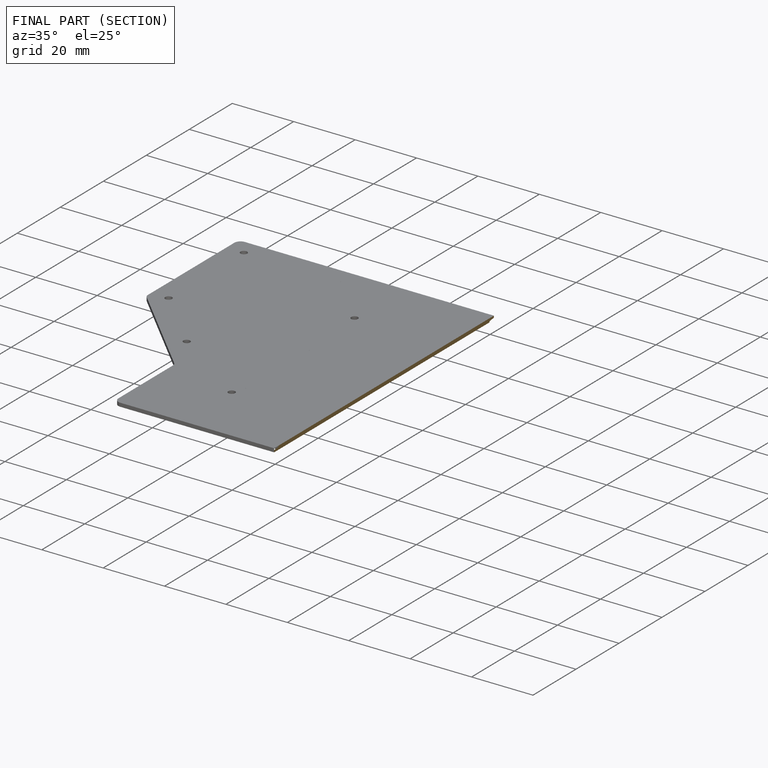
[diagram: finished part — half-section view (interior)]
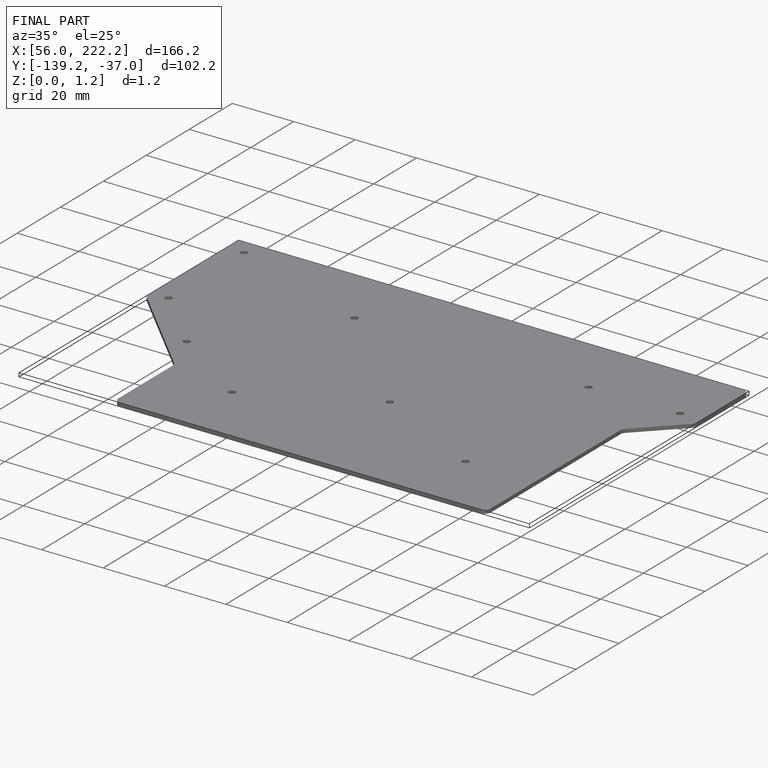
[diagram: finished part — iso view with bounding-box wireframe]
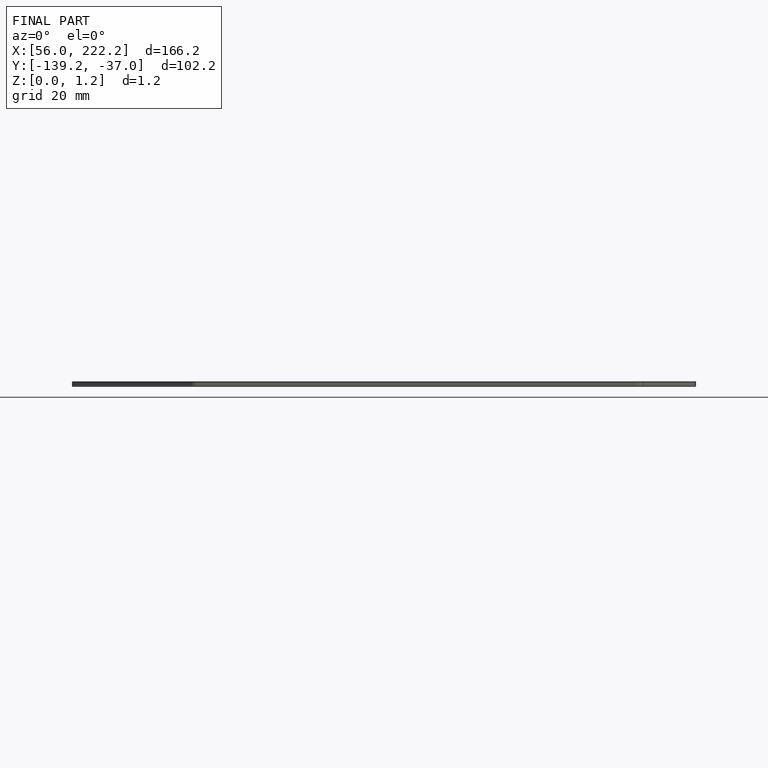
[diagram: finished part — front view with bounding-box wireframe]
